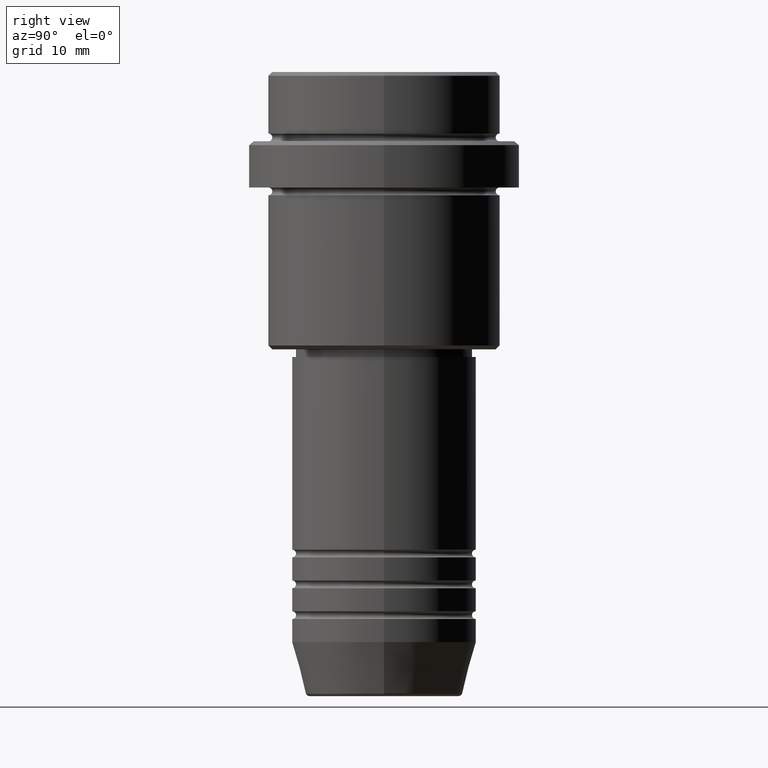
[diagram: clean part render]
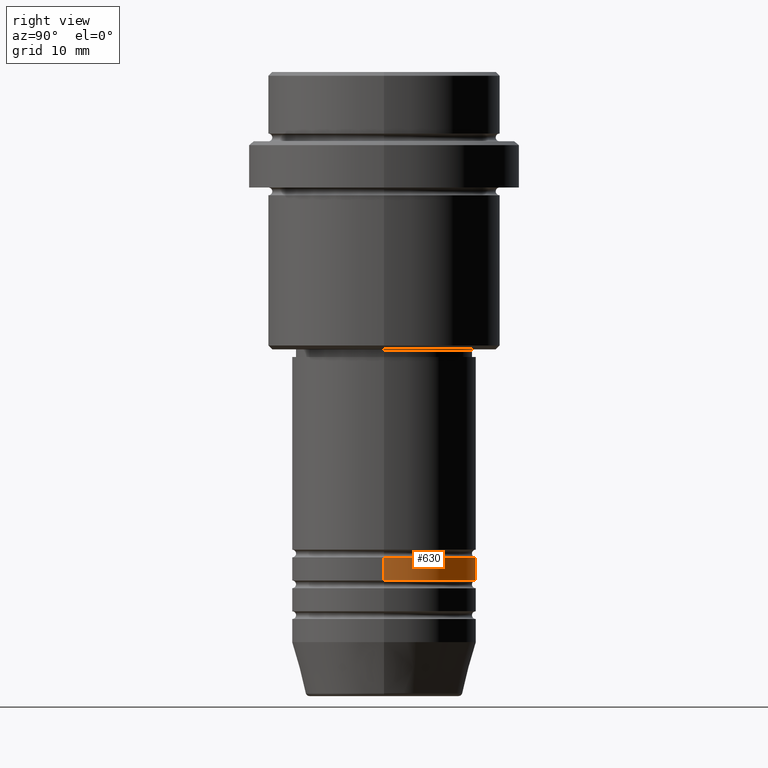
[diagram: same view with one face highlighted and labeled with its STEP entity id]
A machine part, right view. The second image highlights one B-rep face of the part: STEP entity #630.
In plain terms, the highlighted cylindrical surface (partial cylindrical patch) has radius 12 mm, axis along (-0, -0, 1).
Its self-contained STEP definition (entity closure, byte-faithful):
#58 = LINE ( 'NONE', #1030, #834 ) ;
#71 = ORIENTED_EDGE ( 'NONE', *, *, #1036, .T. ) ;
#112 = CIRCLE ( 'NONE', #512, 12.00000000000000000 ) ;
#133 = AXIS2_PLACEMENT_3D ( 'NONE', #647, #315, #552 ) ;
#185 = VERTEX_POINT ( 'NONE', #1115 ) ;
#190 = ORIENTED_EDGE ( 'NONE', *, *, #1210, .F. ) ;
#191 = VERTEX_POINT ( 'NONE', #697 ) ;
#193 = ORIENTED_EDGE ( 'NONE', *, *, #1399, .F. ) ;
#195 = LINE ( 'NONE', #297, #1122 ) ;
#280 = CARTESIAN_POINT ( 'NONE',  ( -12.00000000000000000, 1.469576158976823947E-15, -62.99999999999988631 ) ) ;
#297 = CARTESIAN_POINT ( 'NONE',  ( -12.00000000000000000, 1.469576158976823947E-15, 0.000000000000000000 ) ) ;
#315 = DIRECTION ( 'NONE',  ( -0.000000000000000000, -0.000000000000000000, 1.000000000000000000 ) ) ;
#412 = CIRCLE ( 'NONE', #133, 12.00000000000000000 ) ;
#421 = VERTEX_POINT ( 'NONE', #280 ) ;
#441 = DIRECTION ( 'NONE',  ( -0.000000000000000000, -0.000000000000000000, 1.000000000000000000 ) ) ;
#512 = AXIS2_PLACEMENT_3D ( 'NONE', #1308, #441, #1314 ) ;
#531 = DIRECTION ( 'NONE',  ( -0.000000000000000000, -0.000000000000000000, 1.000000000000000000 ) ) ;
#552 = DIRECTION ( 'NONE',  ( 1.000000000000000000, 0.000000000000000000, 0.000000000000000000 ) ) ;
#620 = ORIENTED_EDGE ( 'NONE', *, *, #1105, .T. ) ;
#630 = ADVANCED_FACE ( 'NONE', ( #1061 ), #942, .T. ) ;
#647 = CARTESIAN_POINT ( 'NONE',  ( 0.000000000000000000, 0.000000000000000000, -65.99999999999988631 ) ) ;
#672 = EDGE_LOOP ( 'NONE', ( #620, #71, #190, #193 ) ) ;
#697 = CARTESIAN_POINT ( 'NONE',  ( 12.00000000000000000, 0.000000000000000000, -65.99999999999988631 ) ) ;
#720 = CARTESIAN_POINT ( 'NONE',  ( 0.000000000000000000, 0.000000000000000000, 0.000000000000000000 ) ) ;
#764 = AXIS2_PLACEMENT_3D ( 'NONE', #720, #1249, #1382 ) ;
#834 = VECTOR ( 'NONE', #944, 1000.000000000000000 ) ;
#942 = CYLINDRICAL_SURFACE ( 'NONE', #764, 12.00000000000000000 ) ;
#944 = DIRECTION ( 'NONE',  ( -0.000000000000000000, -0.000000000000000000, 1.000000000000000000 ) ) ;
#1030 = CARTESIAN_POINT ( 'NONE',  ( 12.00000000000000000, 0.000000000000000000, 0.000000000000000000 ) ) ;
#1036 = EDGE_CURVE ( 'NONE', #185, #421, #195, .T. ) ;
#1061 = FACE_OUTER_BOUND ( 'NONE', #672, .T. ) ;
#1105 = EDGE_CURVE ( 'NONE', #191, #185, #412, .T. ) ;
#1115 = CARTESIAN_POINT ( 'NONE',  ( -12.00000000000000000, 1.469576158976823947E-15, -65.99999999999988631 ) ) ;
#1118 = CARTESIAN_POINT ( 'NONE',  ( 12.00000000000000000, 0.000000000000000000, -62.99999999999988631 ) ) ;
#1122 = VECTOR ( 'NONE', #531, 1000.000000000000000 ) ;
#1210 = EDGE_CURVE ( 'NONE', #1361, #421, #112, .T. ) ;
#1249 = DIRECTION ( 'NONE',  ( -0.000000000000000000, -0.000000000000000000, 1.000000000000000000 ) ) ;
#1308 = CARTESIAN_POINT ( 'NONE',  ( 0.000000000000000000, 0.000000000000000000, -62.99999999999988631 ) ) ;
#1314 = DIRECTION ( 'NONE',  ( 1.000000000000000000, 0.000000000000000000, 0.000000000000000000 ) ) ;
#1361 = VERTEX_POINT ( 'NONE', #1118 ) ;
#1382 = DIRECTION ( 'NONE',  ( 1.000000000000000000, 0.000000000000000000, 0.000000000000000000 ) ) ;
#1399 = EDGE_CURVE ( 'NONE', #191, #1361, #58, .T. ) ;